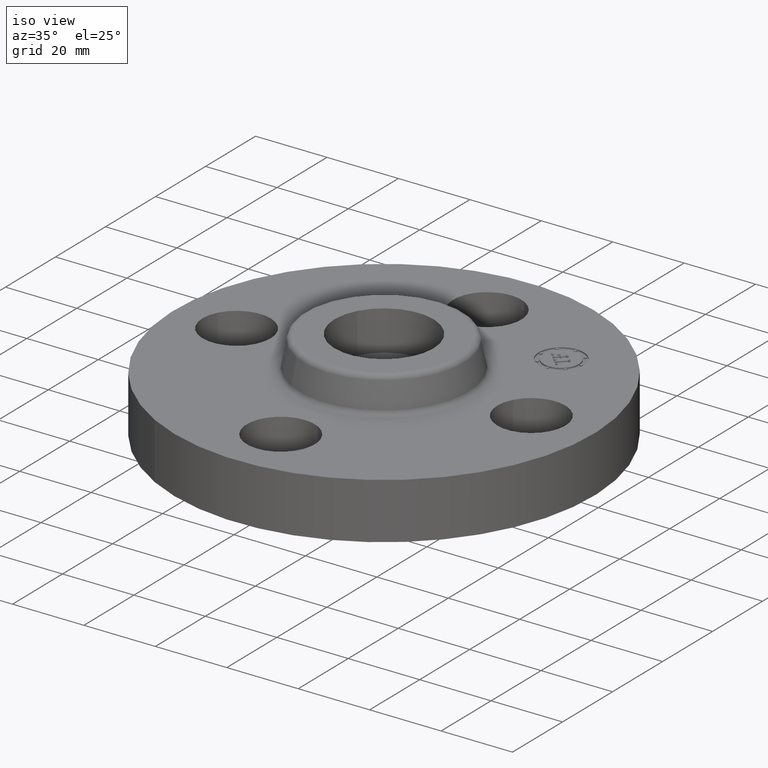
[diagram: clean part render]
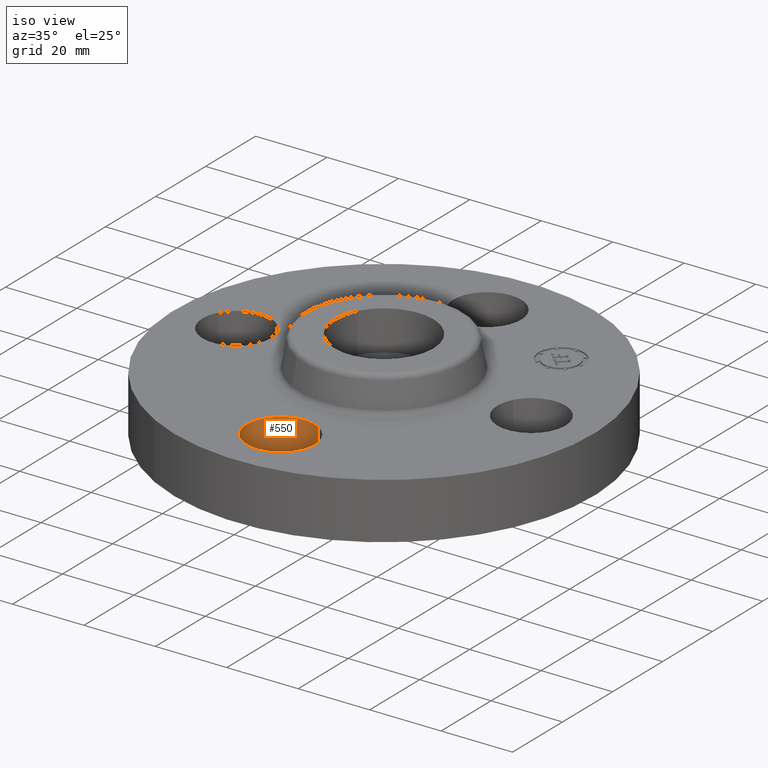
[diagram: same view with one face highlighted and labeled with its STEP entity id]
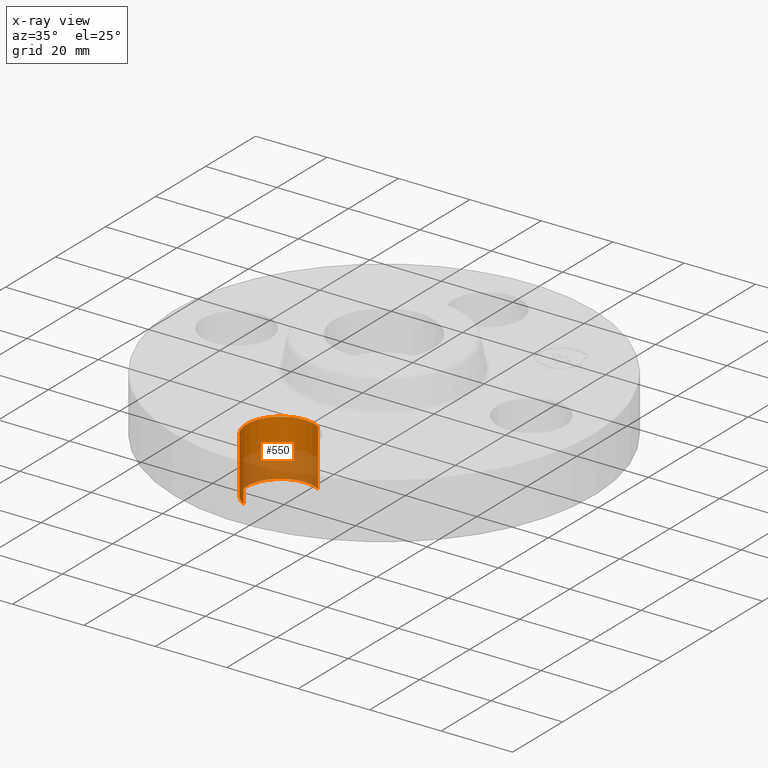
[diagram: x-ray of the same camera — body ghosted, the highlighted face saturated]
A machine part, iso view. The second image highlights one B-rep face of the part: STEP entity #550.
The next image is the same camera in x-ray: the body ghosted, the highlighted face saturated — about 45% of this face is hidden behind the body in this view.
In plain terms, the highlighted cylindrical surface (partial cylindrical patch) has radius 9.525 mm, axis along (0, -0, -1).
Its self-contained STEP definition (entity closure, byte-faithful):
#176=AXIS2_PLACEMENT_3D('Circle Axis2P3D',#174,#175,$) ;
#523=AXIS2_PLACEMENT_3D('Cylinder Axis2P3D',#520,#521,#522) ;
#541=AXIS2_PLACEMENT_3D('Circle Axis2P3D',#539,#540,$) ;
#169=CARTESIAN_POINT('Vertex',(0.179784576977,-1.2959065393,0.)) ;
#171=CARTESIAN_POINT('Vertex',(-0.179784576977,-1.95409346072,0.)) ;
#174=CARTESIAN_POINT('Axis2P3D Location',(-2.79741234551E-016,-1.62500000001,0.)) ;
#520=CARTESIAN_POINT('Axis2P3D Location',(-1.8023868212E-016,-1.62500000001,0.616062992128)) ;
#525=CARTESIAN_POINT('Line Origine',(-0.179784576977,-1.95409346072,0.310000000001)) ;
#529=CARTESIAN_POINT('Vertex',(-0.179784576977,-1.95409346072,0.620000000002)) ;
#532=CARTESIAN_POINT('Line Origine',(0.179784576977,-1.2959065393,0.310000000001)) ;
#536=CARTESIAN_POINT('Vertex',(0.179784576977,-1.2959065393,0.620000000002)) ;
#539=CARTESIAN_POINT('Axis2P3D Location',(-1.8023868212E-016,-1.62500000001,0.620000000002)) ;
#175=DIRECTION('Axis2P3D Direction',(0.,0.,-0.0393700787402)) ;
#521=DIRECTION('Axis2P3D Direction',(0.,-0.,-0.0393700787402)) ;
#522=DIRECTION('Axis2P3D XDirection',(0.0188750212049,0.0345504945626,-0.)) ;
#526=DIRECTION('Vector Direction',(0.,0.,-0.0393700787402)) ;
#533=DIRECTION('Vector Direction',(0.,0.,-0.0393700787402)) ;
#540=DIRECTION('Axis2P3D Direction',(0.,-0.,-0.0393700787402)) ;
#527=VECTOR('Line Direction',#526,0.0393700787402) ;
#534=VECTOR('Line Direction',#533,0.0393700787402) ;
#545=ORIENTED_EDGE('',*,*,#531,.F.) ;
#546=ORIENTED_EDGE('',*,*,#178,.T.) ;
#547=ORIENTED_EDGE('',*,*,#538,.T.) ;
#548=ORIENTED_EDGE('',*,*,#543,.F.) ;
#550=ADVANCED_FACE('PartBody',(#549),#524,.F.) ;
#177=CIRCLE('generated circle',#176,0.375000000001) ;
#542=CIRCLE('generated circle',#541,0.375000000001) ;
#524=CYLINDRICAL_SURFACE('generated cylinder',#523,0.375000000001) ;
#178=EDGE_CURVE('',#172,#170,#177,.T.) ;
#531=EDGE_CURVE('',#172,#530,#528,.F.) ;
#538=EDGE_CURVE('',#170,#537,#535,.F.) ;
#543=EDGE_CURVE('',#530,#537,#542,.T.) ;
#544=EDGE_LOOP('',(#545,#546,#547,#548)) ;
#549=FACE_OUTER_BOUND('',#544,.T.) ;
#528=LINE('Line',#525,#527) ;
#535=LINE('Line',#532,#534) ;
#170=VERTEX_POINT('',#169) ;
#172=VERTEX_POINT('',#171) ;
#530=VERTEX_POINT('',#529) ;
#537=VERTEX_POINT('',#536) ;